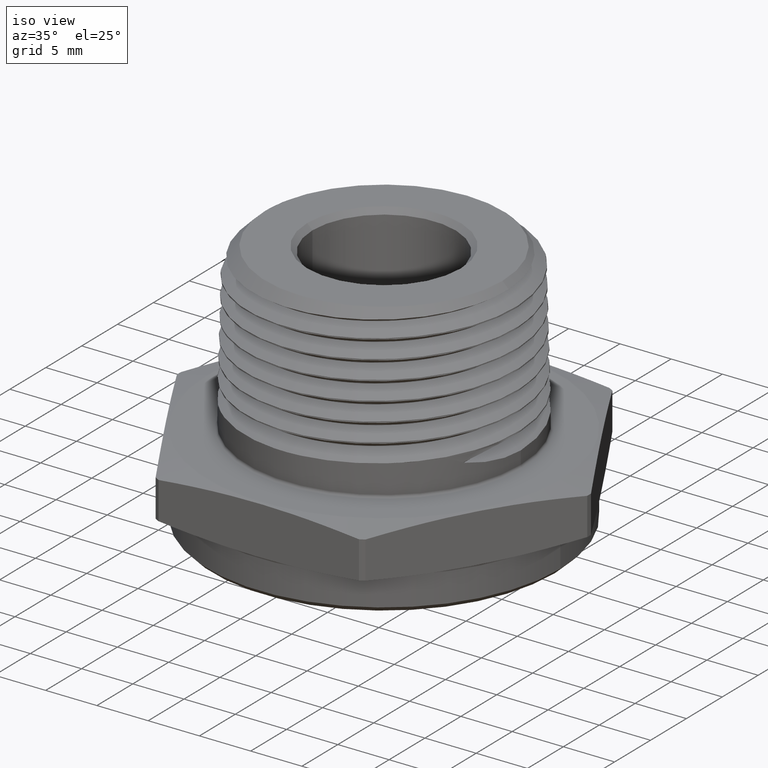
[diagram: clean part render]
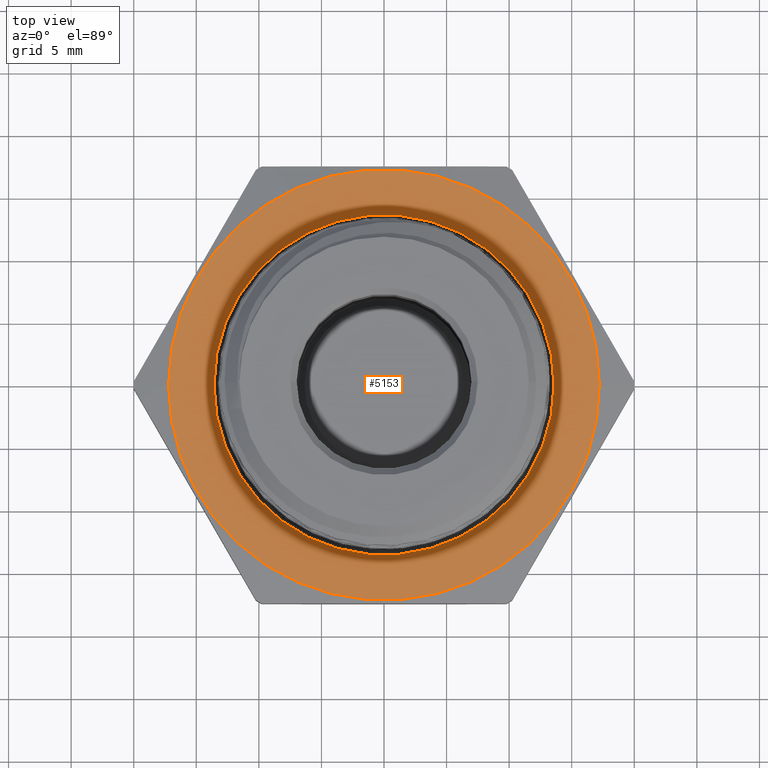
[diagram: tour spotlight — one face highlighted and labeled with its STEP entity id]
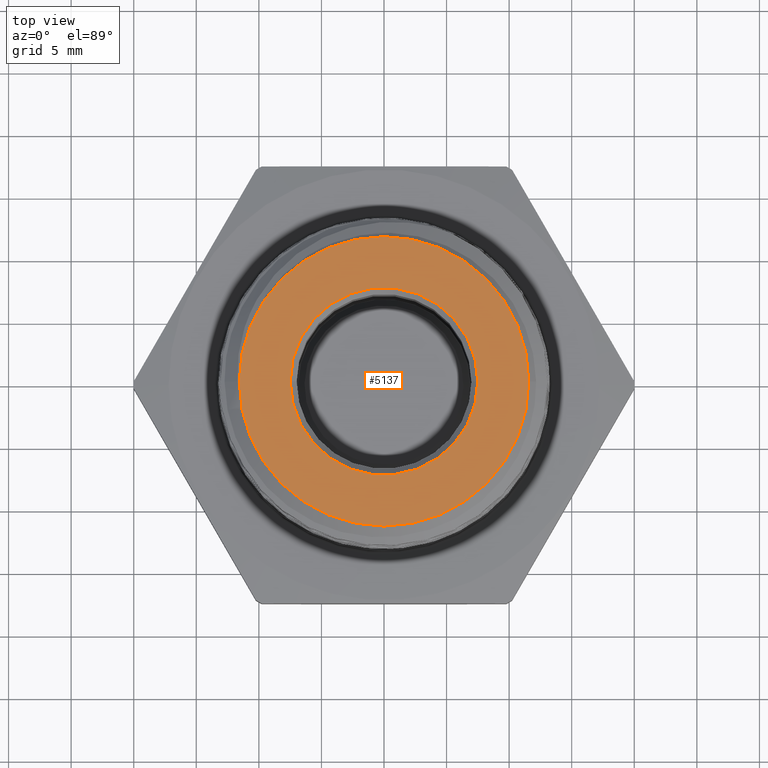
[diagram: tour spotlight — one face highlighted and labeled with its STEP entity id]
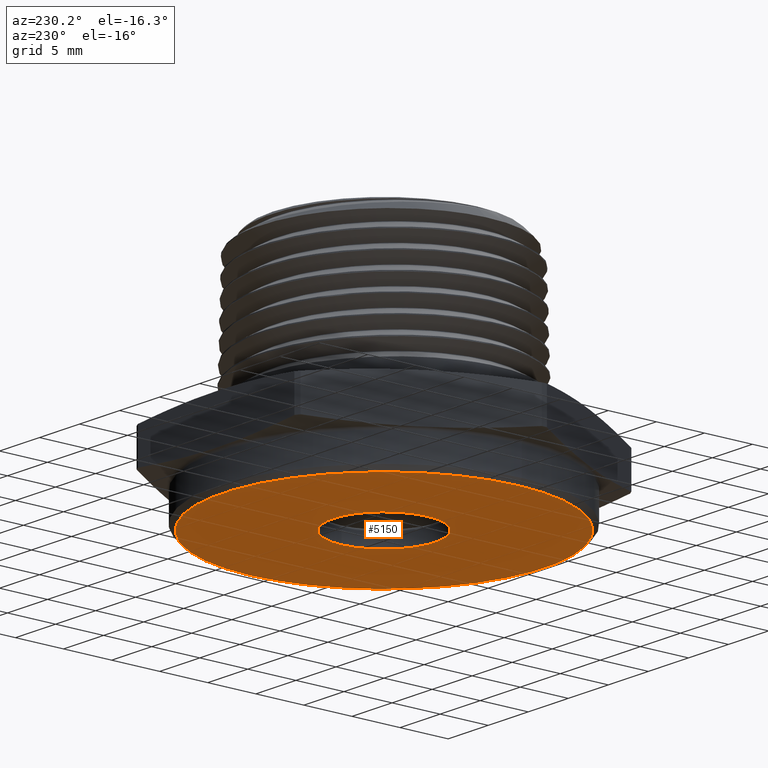
[diagram: tour spotlight — one face highlighted and labeled with its STEP entity id]
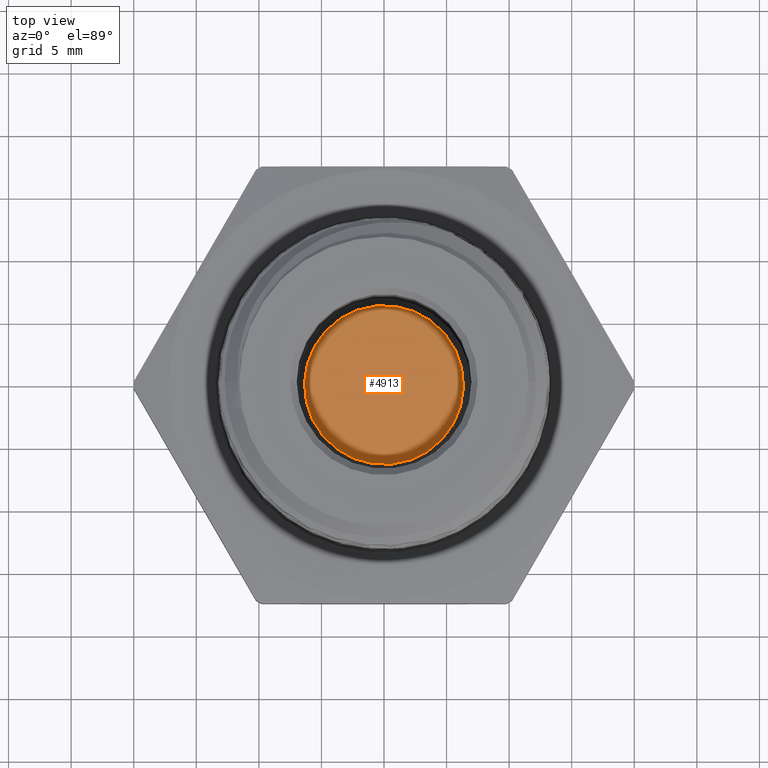
[diagram: tour spotlight — one face highlighted and labeled with its STEP entity id]
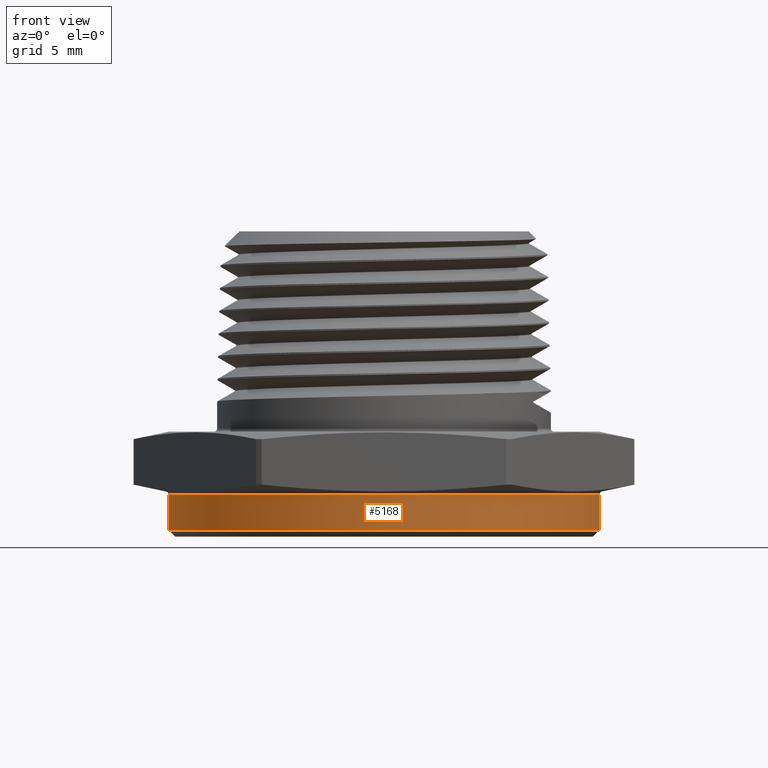
[diagram: tour spotlight — one face highlighted and labeled with its STEP entity id]
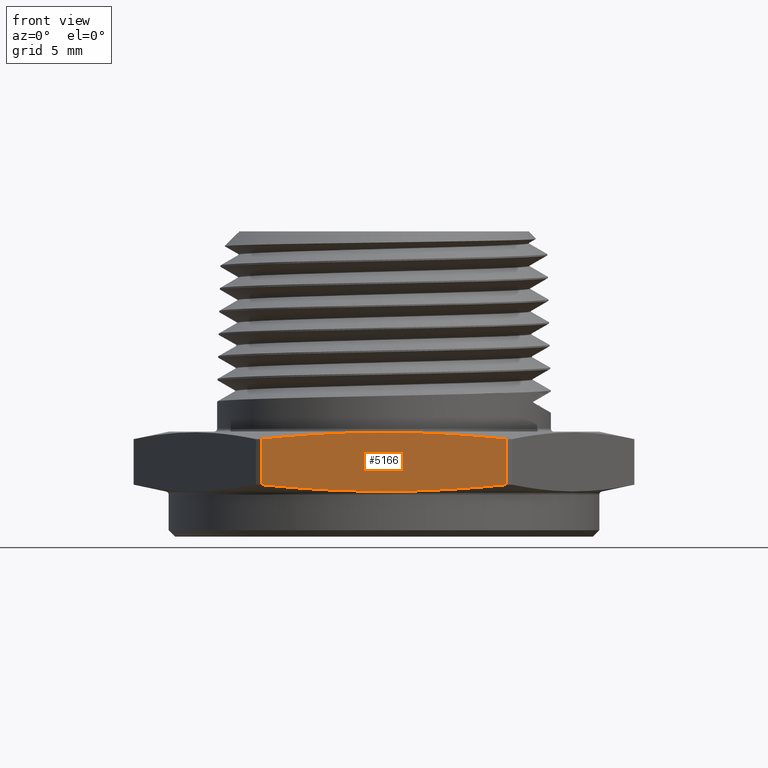
[diagram: tour spotlight — one face highlighted and labeled with its STEP entity id]
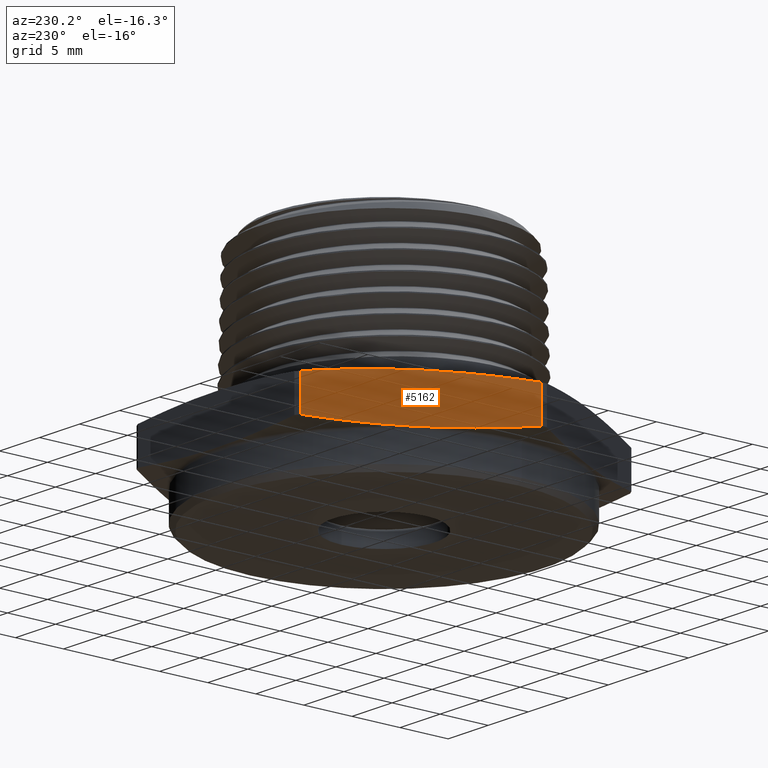
[diagram: tour spotlight — one face highlighted and labeled with its STEP entity id]
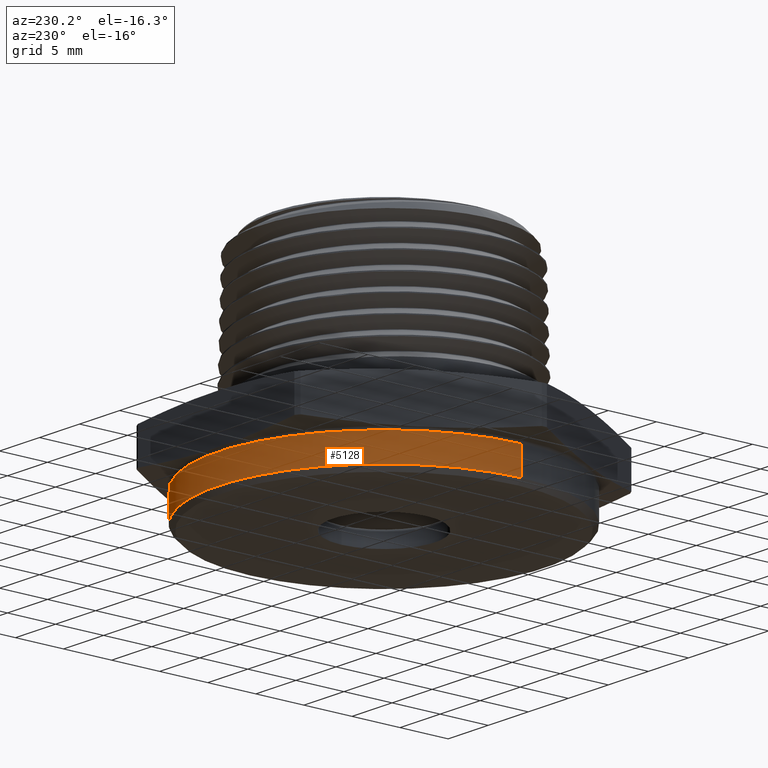
[diagram: tour spotlight — one face highlighted and labeled with its STEP entity id]
A machine part: a face-by-face anatomy tour. The part has 72 B-rep faces; the first image is the clean iso view, then the 8 largest visible faces are spotlighted one at a time (largest first), each with its STEP entity span.

Face 1 — top view, entity #5153. In plain terms, the highlighted planar face has unit normal (0, 0, 1).
Definition (entity closure, byte-faithful):
#207 = CARTESIAN_POINT ( 'NONE',  ( 2.384474441109529400E-017, 0.0000000000000000000, 0.1899999999999999200 ) ) ;
#208 = DIRECTION ( 'NONE',  ( -1.254986547952384500E-016, -0.0000000000000000000, -1.000000000000000000 ) ) ;
#209 = DIRECTION ( 'NONE',  ( -1.000000000000000000, 0.0000000000000000000, 1.008061990282016000E-016 ) ) ;
#212 = CARTESIAN_POINT ( 'NONE',  ( 0.0000000000000000000, 0.0000000000000000000, 0.1899999999999999700 ) ) ;
#213 = DIRECTION ( 'NONE',  ( 0.0000000000000000000, -0.0000000000000000000, -1.000000000000000000 ) ) ;
#214 = DIRECTION ( 'NONE',  ( 1.000000000000000000, 0.0000000000000000000, 0.0000000000000000000 ) ) ;
#702 = CIRCLE ( 'NONE', #5214, 0.5350000000000000300 ) ;
#722 = CIRCLE ( 'NONE', #5226, 0.6774999999999999900 ) ;
#737 = CIRCLE ( 'NONE', #4591, 0.5350000000000000300 ) ;
#740 = CIRCLE ( 'NONE', #4590, 0.6774999999999999900 ) ;
#1155 = CARTESIAN_POINT ( 'NONE',  ( -0.6774999999999997700, 0.0000000000000000000, 0.1899999999999999700 ) ) ;
#1162 = CARTESIAN_POINT ( 'NONE',  ( 0.5350000000000000300, 0.0000000000000000000, 0.1900000000000000300 ) ) ;
#1163 = CARTESIAN_POINT ( 'NONE',  ( -0.5350000000000000300, 6.551860375438339900E-017, 0.1900000000000000300 ) ) ;
#1168 = CARTESIAN_POINT ( 'NONE',  ( 0.6775000000000001000, 8.296982064223318700E-017, 0.1899999999999998600 ) ) ;
#2960 = DIRECTION ( 'NONE',  ( -0.0000000000000000000, 0.0000000000000000000, 1.000000000000000000 ) ) ;
#2961 = CARTESIAN_POINT ( 'NONE',  ( -0.3969283100678672700, -0.6875000000000000000, 0.1899999999999999700 ) ) ;
#2963 = PLANE ( 'NONE',  #2999 ) ;
#2965 = DIRECTION ( 'NONE',  ( 1.000000000000000000, 0.0000000000000000000, 0.0000000000000000000 ) ) ;
#2999 = AXIS2_PLACEMENT_3D ( 'NONE', #2961, #2960, #2965 ) ;
#4273 = EDGE_CURVE ( 'NONE', #4798, #4799, #702, .T. ) ;
#4292 = EDGE_CURVE ( 'NONE', #4791, #4804, #722, .T. ) ;
#4310 = EDGE_CURVE ( 'NONE', #4804, #4791, #740, .T. ) ;
#4311 = EDGE_CURVE ( 'NONE', #4799, #4798, #737, .T. ) ;
#4510 = CARTESIAN_POINT ( 'NONE',  ( 0.0000000000000000000, 0.0000000000000000000, 0.1899999999999999700 ) ) ;
#4511 = DIRECTION ( 'NONE',  ( 0.0000000000000000000, -0.0000000000000000000, -1.000000000000000000 ) ) ;
#4512 = DIRECTION ( 'NONE',  ( 1.000000000000000000, 0.0000000000000000000, 0.0000000000000000000 ) ) ;
#4584 = CARTESIAN_POINT ( 'NONE',  ( 2.384474441109529400E-017, 0.0000000000000000000, 0.1899999999999999200 ) ) ;
#4585 = DIRECTION ( 'NONE',  ( -1.254986547952384500E-016, -0.0000000000000000000, -1.000000000000000000 ) ) ;
#4586 = DIRECTION ( 'NONE',  ( -1.000000000000000000, 0.0000000000000000000, 1.008061990282016000E-016 ) ) ;
#4590 = AXIS2_PLACEMENT_3D ( 'NONE', #207, #208, #209 ) ;
#4591 = AXIS2_PLACEMENT_3D ( 'NONE', #212, #213, #214 ) ;
#4707 = FACE_OUTER_BOUND ( 'NONE', #5078, .T. ) ;
#4709 = FACE_BOUND ( 'NONE', #5080, .T. ) ;
#4791 = VERTEX_POINT ( 'NONE', #1155 ) ;
#4798 = VERTEX_POINT ( 'NONE', #1162 ) ;
#4799 = VERTEX_POINT ( 'NONE', #1163 ) ;
#4804 = VERTEX_POINT ( 'NONE', #1168 ) ;
#5001 = ORIENTED_EDGE ( 'NONE', *, *, #4292, .F. ) ;
#5002 = ORIENTED_EDGE ( 'NONE', *, *, #4310, .F. ) ;
#5003 = ORIENTED_EDGE ( 'NONE', *, *, #4273, .T. ) ;
#5004 = ORIENTED_EDGE ( 'NONE', *, *, #4311, .T. ) ;
#5078 = EDGE_LOOP ( 'NONE', ( #5001, #5002 ) ) ;
#5080 = EDGE_LOOP ( 'NONE', ( #5003, #5004 ) ) ;
#5153 = ADVANCED_FACE ( 'NONE', ( #4707, #4709 ), #2963, .T. ) ;
#5214 = AXIS2_PLACEMENT_3D ( 'NONE', #4510, #4511, #4512 ) ;
#5226 = AXIS2_PLACEMENT_3D ( 'NONE', #4584, #4585, #4586 ) ;

Face 2 — top view, entity #5137. In plain terms, the highlighted planar face has unit normal (0, 0, 1).
Definition (entity closure, byte-faithful):
#24 = EDGE_CURVE ( 'NONE', #4789, #4790, #918, .T. ) ;
#918 = CIRCLE ( 'NONE', #5190, 0.2949999999999998200 ) ;
#1153 = CARTESIAN_POINT ( 'NONE',  ( -0.2949999999999998200, 3.612708057484689500E-017, 0.8199999999999999500 ) ) ;
#1154 = CARTESIAN_POINT ( 'NONE',  ( 0.2949999999999998200, 0.0000000000000000000, 0.8199999999999999500 ) ) ;
#1215 = CARTESIAN_POINT ( 'NONE',  ( -0.4553000000000001500, 0.0000000000000000000, 0.8199999999999999500 ) ) ;
#1216 = CARTESIAN_POINT ( 'NONE',  ( 0.4553000000000001500, 5.860879756886066600E-017, 0.8199999999999999500 ) ) ;
#2910 = DIRECTION ( 'NONE',  ( 0.0000000000000000000, 0.0000000000000000000, 1.000000000000000000 ) ) ;
#2911 = CARTESIAN_POINT ( 'NONE',  ( 0.0000000000000000000, 0.0000000000000000000, 0.8199999999999999500 ) ) ;
#2913 = PLANE ( 'NONE',  #2983 ) ;
#2915 = DIRECTION ( 'NONE',  ( 1.000000000000000000, 0.0000000000000000000, -0.0000000000000000000 ) ) ;
#2983 = AXIS2_PLACEMENT_3D ( 'NONE', #2911, #2910, #2915 ) ;
#3014 = AXIS2_PLACEMENT_3D ( 'NONE', #3124, #3125, #3126 ) ;
#3016 = AXIS2_PLACEMENT_3D ( 'NONE', #3181, #3182, #3183 ) ;
#3019 = AXIS2_PLACEMENT_3D ( 'NONE', #3301, #3302, #3303 ) ;
#3124 = CARTESIAN_POINT ( 'NONE',  ( 0.0000000000000000000, 0.0000000000000000000, 0.8199999999999999500 ) ) ;
#3125 = DIRECTION ( 'NONE',  ( -0.0000000000000000000, -0.0000000000000000000, -1.000000000000000000 ) ) ;
#3126 = DIRECTION ( 'NONE',  ( -1.000000000000000000, 0.0000000000000000000, 0.0000000000000000000 ) ) ;
#3181 = CARTESIAN_POINT ( 'NONE',  ( 0.0000000000000000000, 0.0000000000000000000, 0.8199999999999999500 ) ) ;
#3182 = DIRECTION ( 'NONE',  ( -0.0000000000000000000, -0.0000000000000000000, -1.000000000000000000 ) ) ;
#3183 = DIRECTION ( 'NONE',  ( -1.000000000000000000, 0.0000000000000000000, 0.0000000000000000000 ) ) ;
#3301 = CARTESIAN_POINT ( 'NONE',  ( 4.898587196589410500E-018, 0.0000000000000000000, 0.8199999999999999500 ) ) ;
#3302 = DIRECTION ( 'NONE',  ( -0.0000000000000000000, -0.0000000000000000000, 1.000000000000000000 ) ) ;
#3303 = DIRECTION ( 'NONE',  ( 1.000000000000000000, 0.0000000000000000000, 0.0000000000000000000 ) ) ;
#4387 = DIRECTION ( 'NONE',  ( -0.0000000000000000000, -0.0000000000000000000, 1.000000000000000000 ) ) ;
#4388 = CARTESIAN_POINT ( 'NONE',  ( 4.898587196589410500E-018, 0.0000000000000000000, 0.8199999999999999500 ) ) ;
#4390 = DIRECTION ( 'NONE',  ( 1.000000000000000000, 0.0000000000000000000, 0.0000000000000000000 ) ) ;
#4670 = FACE_BOUND ( 'NONE', #5075, .T. ) ;
#4675 = FACE_OUTER_BOUND ( 'NONE', #5072, .T. ) ;
#4705 = CIRCLE ( 'NONE', #3016, 0.4553000000000001500 ) ;
#4735 = CIRCLE ( 'NONE', #3014, 0.4553000000000001500 ) ;
#4743 = CIRCLE ( 'NONE', #3019, 0.2949999999999998200 ) ;
#4789 = VERTEX_POINT ( 'NONE', #1153 ) ;
#4790 = VERTEX_POINT ( 'NONE', #1154 ) ;
#4851 = VERTEX_POINT ( 'NONE', #1215 ) ;
#4852 = VERTEX_POINT ( 'NONE', #1216 ) ;
#5072 = EDGE_LOOP ( 'NONE', ( #5571, #5572 ) ) ;
#5075 = EDGE_LOOP ( 'NONE', ( #5573, #5574 ) ) ;
#5137 = ADVANCED_FACE ( 'NONE', ( #4675, #4670 ), #2913, .T. ) ;
#5171 = EDGE_CURVE ( 'NONE', #4851, #4852, #4735, .T. ) ;
#5176 = EDGE_CURVE ( 'NONE', #4852, #4851, #4705, .T. ) ;
#5185 = EDGE_CURVE ( 'NONE', #4790, #4789, #4743, .T. ) ;
#5190 = AXIS2_PLACEMENT_3D ( 'NONE', #4388, #4387, #4390 ) ;
#5571 = ORIENTED_EDGE ( 'NONE', *, *, #5171, .F. ) ;
#5572 = ORIENTED_EDGE ( 'NONE', *, *, #5176, .F. ) ;
#5573 = ORIENTED_EDGE ( 'NONE', *, *, #5185, .F. ) ;
#5574 = ORIENTED_EDGE ( 'NONE', *, *, #24, .F. ) ;

Face 3 — auxiliary view, entity #5150. In plain terms, the highlighted planar face has unit normal (0, 0, -1).
Definition (entity closure, byte-faithful):
#20 = EDGE_CURVE ( 'NONE', #4788, #4787, #910, .T. ) ;
#25 = EDGE_CURVE ( 'NONE', #4776, #4792, #917, .T. ) ;
#910 = CIRCLE ( 'NONE', #5188, 0.2090000000000001000 ) ;
#917 = CIRCLE ( 'NONE', #5191, 0.6574999999999997500 ) ;
#1144 = CARTESIAN_POINT ( 'NONE',  ( -0.6574999999999997500, 8.174517384308581200E-017, -0.1400000000000000100 ) ) ;
#1151 = CARTESIAN_POINT ( 'NONE',  ( 0.2090000000000001000, 0.0000000000000000000, -0.1400000000000000100 ) ) ;
#1152 = CARTESIAN_POINT ( 'NONE',  ( -0.2090000000000001000, 2.559511810217969600E-017, -0.1400000000000000100 ) ) ;
#1156 = CARTESIAN_POINT ( 'NONE',  ( 0.6574999999999997500, 0.0000000000000000000, -0.1400000000000000100 ) ) ;
#2950 = DIRECTION ( 'NONE',  ( 0.0000000000000000000, 0.0000000000000000000, -1.000000000000000000 ) ) ;
#2951 = CARTESIAN_POINT ( 'NONE',  ( 0.0000000000000000000, 0.0000000000000000000, -0.1400000000000000100 ) ) ;
#2953 = PLANE ( 'NONE',  #2996 ) ;
#2955 = DIRECTION ( 'NONE',  ( -1.000000000000000000, 0.0000000000000000000, -0.0000000000000000000 ) ) ;
#2996 = AXIS2_PLACEMENT_3D ( 'NONE', #2951, #2950, #2955 ) ;
#3017 = AXIS2_PLACEMENT_3D ( 'NONE', #3294, #3295, #3296 ) ;
#3018 = AXIS2_PLACEMENT_3D ( 'NONE', #3298, #3299, #3300 ) ;
#3294 = CARTESIAN_POINT ( 'NONE',  ( 0.0000000000000000000, 0.0000000000000000000, -0.1400000000000000100 ) ) ;
#3295 = DIRECTION ( 'NONE',  ( 0.0000000000000000000, 0.0000000000000000000, -1.000000000000000000 ) ) ;
#3296 = DIRECTION ( 'NONE',  ( -1.000000000000000000, 0.0000000000000000000, 0.0000000000000000000 ) ) ;
#3298 = CARTESIAN_POINT ( 'NONE',  ( 4.898587196589410500E-018, 0.0000000000000000000, -0.1400000000000000100 ) ) ;
#3299 = DIRECTION ( 'NONE',  ( -0.0000000000000000000, -0.0000000000000000000, 1.000000000000000000 ) ) ;
#3300 = DIRECTION ( 'NONE',  ( 1.000000000000000000, 0.0000000000000000000, 0.0000000000000000000 ) ) ;
#4385 = DIRECTION ( 'NONE',  ( 0.0000000000000000000, 0.0000000000000000000, -1.000000000000000000 ) ) ;
#4386 = DIRECTION ( 'NONE',  ( -1.000000000000000000, 0.0000000000000000000, 0.0000000000000000000 ) ) ;
#4396 = DIRECTION ( 'NONE',  ( 1.000000000000000000, 0.0000000000000000000, 0.0000000000000000000 ) ) ;
#4399 = CARTESIAN_POINT ( 'NONE',  ( 0.0000000000000000000, 0.0000000000000000000, -0.1400000000000000100 ) ) ;
#4408 = CARTESIAN_POINT ( 'NONE',  ( 4.898587196589410500E-018, 0.0000000000000000000, -0.1400000000000000100 ) ) ;
#4435 = DIRECTION ( 'NONE',  ( -0.0000000000000000000, -0.0000000000000000000, 1.000000000000000000 ) ) ;
#4680 = FACE_BOUND ( 'NONE', #5073, .T. ) ;
#4701 = FACE_OUTER_BOUND ( 'NONE', #5071, .T. ) ;
#4738 = CIRCLE ( 'NONE', #3018, 0.2090000000000001000 ) ;
#4742 = CIRCLE ( 'NONE', #3017, 0.6574999999999997500 ) ;
#4776 = VERTEX_POINT ( 'NONE', #1144 ) ;
#4787 = VERTEX_POINT ( 'NONE', #1151 ) ;
#4788 = VERTEX_POINT ( 'NONE', #1152 ) ;
#4792 = VERTEX_POINT ( 'NONE', #1156 ) ;
#5071 = EDGE_LOOP ( 'NONE', ( #5567, #5568 ) ) ;
#5073 = EDGE_LOOP ( 'NONE', ( #5569, #5570 ) ) ;
#5150 = ADVANCED_FACE ( 'NONE', ( #4701, #4680 ), #2953, .T. ) ;
#5183 = EDGE_CURVE ( 'NONE', #4792, #4776, #4742, .T. ) ;
#5184 = EDGE_CURVE ( 'NONE', #4787, #4788, #4738, .T. ) ;
#5188 = AXIS2_PLACEMENT_3D ( 'NONE', #4408, #4435, #4396 ) ;
#5191 = AXIS2_PLACEMENT_3D ( 'NONE', #4399, #4385, #4386 ) ;
#5567 = ORIENTED_EDGE ( 'NONE', *, *, #5183, .T. ) ;
#5568 = ORIENTED_EDGE ( 'NONE', *, *, #25, .T. ) ;
#5569 = ORIENTED_EDGE ( 'NONE', *, *, #5184, .T. ) ;
#5570 = ORIENTED_EDGE ( 'NONE', *, *, #20, .T. ) ;

Face 4 — top view, entity #4913. In plain terms, the highlighted planar face has unit normal (0, 0, 1).
Definition (entity closure, byte-faithful):
#16 = EDGE_CURVE ( 'NONE', #4873, #4877, #903, .T. ) ;
#325 = CARTESIAN_POINT ( 'NONE',  ( 0.1166800539378871600, -0.1164497935006366300, 0.2362204724409449100 ) ) ;
#326 = DIRECTION ( 'NONE',  ( -0.0000000000000000000, 0.0000000000000000000, 1.000000000000000000 ) ) ;
#327 = DIRECTION ( 'NONE',  ( 1.000000000000000000, 0.0000000000000000000, 0.0000000000000000000 ) ) ;
#784 = CIRCLE ( 'NONE', #4603, 0.2500000000000002800 ) ;
#822 = FACE_OUTER_BOUND ( 'NONE', #5623, .T. ) ;
#895 = ORIENTED_EDGE ( 'NONE', *, *, #4348, .T. ) ;
#896 = ORIENTED_EDGE ( 'NONE', *, *, #16, .T. ) ;
#903 = CIRCLE ( 'NONE', #5187, 0.2500000000000002800 ) ;
#1237 = CARTESIAN_POINT ( 'NONE',  ( 0.3666800539378874400, -0.1164497935006366000, 0.2362204724409449100 ) ) ;
#1241 = CARTESIAN_POINT ( 'NONE',  ( -0.1333199460621131100, -0.1164497935006366300, 0.2362204724409449100 ) ) ;
#2845 = CARTESIAN_POINT ( 'NONE',  ( 0.0000000000000000000, 0.0000000000000000000, 0.2362204724409449100 ) ) ;
#2847 = PLANE ( 'NONE',  #4625 ) ;
#2849 = DIRECTION ( 'NONE',  ( -0.0000000000000000000, 0.0000000000000000000, 1.000000000000000000 ) ) ;
#2850 = DIRECTION ( 'NONE',  ( 1.000000000000000000, 0.0000000000000000000, 0.0000000000000000000 ) ) ;
#4348 = EDGE_CURVE ( 'NONE', #4877, #4873, #784, .T. ) ;
#4378 = CARTESIAN_POINT ( 'NONE',  ( 0.1166800539378871600, -0.1164497935006366300, 0.2362204724409449100 ) ) ;
#4379 = DIRECTION ( 'NONE',  ( -0.0000000000000000000, 0.0000000000000000000, 1.000000000000000000 ) ) ;
#4380 = DIRECTION ( 'NONE',  ( 1.000000000000000000, 0.0000000000000000000, 0.0000000000000000000 ) ) ;
#4603 = AXIS2_PLACEMENT_3D ( 'NONE', #325, #326, #327 ) ;
#4625 = AXIS2_PLACEMENT_3D ( 'NONE', #2845, #2849, #2850 ) ;
#4873 = VERTEX_POINT ( 'NONE', #1237 ) ;
#4877 = VERTEX_POINT ( 'NONE', #1241 ) ;
#4913 = ADVANCED_FACE ( 'NONE', ( #822 ), #2847, .T. ) ;
#5187 = AXIS2_PLACEMENT_3D ( 'NONE', #4378, #4379, #4380 ) ;
#5623 = EDGE_LOOP ( 'NONE', ( #895, #896 ) ) ;

Face 5 — front view, entity #5168. In plain terms, the highlighted cylindrical surface (partial cylindrical patch) has radius 17.2085 mm, axis along (0, 0, 1).
Definition (entity closure, byte-faithful):
#340 = CARTESIAN_POINT ( 'NONE',  ( 0.0000000000000000000, 0.0000000000000000000, -0.1199999999999995400 ) ) ;
#341 = DIRECTION ( 'NONE',  ( 0.0000000000000000000, 0.0000000000000000000, 1.000000000000000000 ) ) ;
#342 = DIRECTION ( 'NONE',  ( -1.000000000000000000, 0.0000000000000000000, 0.0000000000000000000 ) ) ;
#707 = CIRCLE ( 'NONE', #5216, 0.6774999999999999900 ) ;
#710 = LINE ( 'NONE', #4528, #714 ) ;
#714 = VECTOR ( 'NONE', #4523, 39.37007874015748100 ) ;
#715 = LINE ( 'NONE', #4519, #717 ) ;
#717 = VECTOR ( 'NONE', #4527, 39.37007874015748100 ) ;
#783 = CIRCLE ( 'NONE', #4605, 0.6774999999999999900 ) ;
#1158 = CARTESIAN_POINT ( 'NONE',  ( 0.6774999999999999900, 0.0000000000000000000, -0.1199999999999995400 ) ) ;
#1159 = CARTESIAN_POINT ( 'NONE',  ( -0.6774999999999999900, 8.296982064223316200E-017, -0.1199999999999995400 ) ) ;
#1161 = CARTESIAN_POINT ( 'NONE',  ( 0.6774999999999999900, 0.0000000000000000000, -0.008097840331950292200 ) ) ;
#1164 = CARTESIAN_POINT ( 'NONE',  ( -0.6774999999999999900, 8.296982064223316200E-017, -0.008097840331950207200 ) ) ;
#3015 = AXIS2_PLACEMENT_3D ( 'NONE', #3067, #3063, #3064 ) ;
#3063 = DIRECTION ( 'NONE',  ( -0.0000000000000000000, -0.0000000000000000000, 1.000000000000000000 ) ) ;
#3064 = DIRECTION ( 'NONE',  ( 1.000000000000000000, 0.0000000000000000000, 0.0000000000000000000 ) ) ;
#3067 = CARTESIAN_POINT ( 'NONE',  ( 0.0000000000000000000, 0.0000000000000000000, -0.1400000000000000100 ) ) ;
#4275 = EDGE_CURVE ( 'NONE', #4797, #4800, #707, .T. ) ;
#4279 = EDGE_CURVE ( 'NONE', #4795, #4800, #710, .T. ) ;
#4281 = EDGE_CURVE ( 'NONE', #4794, #4797, #715, .T. ) ;
#4351 = EDGE_CURVE ( 'NONE', #4795, #4794, #783, .T. ) ;
#4516 = CARTESIAN_POINT ( 'NONE',  ( 0.0000000000000000000, 0.0000000000000000000, -0.008097840331950248800 ) ) ;
#4517 = DIRECTION ( 'NONE',  ( -6.274932739761922300E-017, -0.0000000000000000000, -1.000000000000000000 ) ) ;
#4518 = DIRECTION ( 'NONE',  ( -1.000000000000000000, 0.0000000000000000000, 6.300387439262599300E-017 ) ) ;
#4519 = CARTESIAN_POINT ( 'NONE',  ( 0.6774999999999999900, 0.0000000000000000000, -0.1400000000000000100 ) ) ;
#4523 = DIRECTION ( 'NONE',  ( -0.0000000000000000000, -0.0000000000000000000, 1.000000000000000000 ) ) ;
#4527 = DIRECTION ( 'NONE',  ( -0.0000000000000000000, -0.0000000000000000000, 1.000000000000000000 ) ) ;
#4528 = CARTESIAN_POINT ( 'NONE',  ( -0.6774999999999999900, 8.296982064223316200E-017, -0.1400000000000000100 ) ) ;
#4605 = AXIS2_PLACEMENT_3D ( 'NONE', #340, #341, #342 ) ;
#4731 = FACE_OUTER_BOUND ( 'NONE', #5066, .T. ) ;
#4734 = CYLINDRICAL_SURFACE ( 'NONE', #3015, 0.6774999999999999900 ) ;
#4794 = VERTEX_POINT ( 'NONE', #1158 ) ;
#4795 = VERTEX_POINT ( 'NONE', #1159 ) ;
#4797 = VERTEX_POINT ( 'NONE', #1161 ) ;
#4800 = VERTEX_POINT ( 'NONE', #1164 ) ;
#5066 = EDGE_LOOP ( 'NONE', ( #5651, #5652, #5653, #5089 ) ) ;
#5089 = ORIENTED_EDGE ( 'NONE', *, *, #4275, .T. ) ;
#5168 = ADVANCED_FACE ( 'NONE', ( #4731 ), #4734, .T. ) ;
#5216 = AXIS2_PLACEMENT_3D ( 'NONE', #4516, #4517, #4518 ) ;
#5651 = ORIENTED_EDGE ( 'NONE', *, *, #4279, .F. ) ;
#5652 = ORIENTED_EDGE ( 'NONE', *, *, #4351, .T. ) ;
#5653 = ORIENTED_EDGE ( 'NONE', *, *, #4281, .T. ) ;

Face 6 — front view, entity #5166. In plain terms, the highlighted planar face has unit normal (-0, 1, 0).
Definition (entity closure, byte-faithful):
#210 = CARTESIAN_POINT ( 'NONE',  ( -0.3847879986326295200, -0.6875000000000000000, 4.829037620974707000E-017 ) ) ;
#211 = DIRECTION ( 'NONE',  ( -1.254986547952384500E-016, -0.0000000000000000000, -1.000000000000000000 ) ) ;
#230 = DIRECTION ( 'NONE',  ( 1.254986547952384500E-016, 0.0000000000000000000, 1.000000000000000000 ) ) ;
#233 = CARTESIAN_POINT ( 'NONE',  ( 0.3847879986326298000, -0.6875000000000000000, -4.829037620974707000E-017 ) ) ;
#255 = CARTESIAN_POINT ( 'NONE',  ( 0.3207939255436971200, -0.6874999999999998900, 0.1731863486800747100 ) ) ;
#257 = CARTESIAN_POINT ( 'NONE',  ( 0.2567715100175838000, -0.6875000000000000000, 0.1785668769994930300 ) ) ;
#265 = CARTESIAN_POINT ( 'NONE',  ( 0.3847879986326296900, -0.6874999999999998900, 0.1665429762664239500 ) ) ;
#267 = CARTESIAN_POINT ( 'NONE',  ( 0.1286501301706381400, -0.6874999999999998900, 0.1859171756744034700 ) ) ;
#268 = CARTESIAN_POINT ( 'NONE',  ( 0.06455070300540921600, -0.6874999999999998900, 0.1878663232334452900 ) ) ;
#269 = CARTESIAN_POINT ( 'NONE',  ( -0.06373527915191769300, -0.6874999999999998900, 0.1878824941396054200 ) ) ;
#270 = CARTESIAN_POINT ( 'NONE',  ( -0.1279218474649859400, -0.6875000000000000000, 0.1859489239488872100 ) ) ;
#271 = CARTESIAN_POINT ( 'NONE',  ( -0.2563731341799861400, -0.6875000000000000000, 0.1785996772984828900 ) ) ;
#272 = CARTESIAN_POINT ( 'NONE',  ( -0.3206987692007933200, -0.6875000000000001100, 0.1731962270796346400 ) ) ;
#273 = CARTESIAN_POINT ( 'NONE',  ( -0.3847879986326295200, -0.6875000000000000000, 0.1665429762664240300 ) ) ;
#283 = CARTESIAN_POINT ( 'NONE',  ( -0.3206987692007930400, -0.6875000000000001100, 0.01680377292036532700 ) ) ;
#285 = CARTESIAN_POINT ( 'NONE',  ( -0.2563731341799860800, -0.6875000000000001100, 0.01140032270151696000 ) ) ;
#293 = CARTESIAN_POINT ( 'NONE',  ( -0.3847879986326295200, -0.6875000000000000000, 0.02345702373357588100 ) ) ;
#294 = CARTESIAN_POINT ( 'NONE',  ( -0.1279218474649858100, -0.6875000000000001100, 0.004051076051112646000 ) ) ;
#295 = CARTESIAN_POINT ( 'NONE',  ( -0.06373527915191754000, -0.6875000000000000000, 0.002117505860394467900 ) ) ;
#296 = CARTESIAN_POINT ( 'NONE',  ( 0.06455070300540931300, -0.6874999999999998900, 0.002133676766554501400 ) ) ;
#297 = CARTESIAN_POINT ( 'NONE',  ( 0.1286501301706384800, -0.6874999999999998900, 0.004082824325596340300 ) ) ;
#298 = CARTESIAN_POINT ( 'NONE',  ( 0.2567715100175841400, -0.6874999999999998900, 0.01143312300050682400 ) ) ;
#299 = CARTESIAN_POINT ( 'NONE',  ( 0.3207939255436973400, -0.6874999999999998900, 0.01681365131992504700 ) ) ;
#300 = CARTESIAN_POINT ( 'NONE',  ( 0.3847879986326296900, -0.6874999999999998900, 0.02345702373357573900 ) ) ;
#742 = LINE ( 'NONE', #210, #744 ) ;
#744 = VECTOR ( 'NONE', #211, 39.37007874015748100 ) ;
#751 = LINE ( 'NONE', #233, #755 ) ;
#755 = VECTOR ( 'NONE', #230, 39.37007874015748100 ) ;
#1185 = CARTESIAN_POINT ( 'NONE',  ( -0.3847879986326295200, -0.6875000000000000000, 0.1665429762664240300 ) ) ;
#1224 = CARTESIAN_POINT ( 'NONE',  ( -0.3847879986326295200, -0.6875000000000000000, 0.02345702373357588100 ) ) ;
#1232 = CARTESIAN_POINT ( 'NONE',  ( 0.3847879986326296900, -0.6874999999999998900, 0.02345702373357573900 ) ) ;
#1238 = CARTESIAN_POINT ( 'NONE',  ( 0.3847879986326296900, -0.6874999999999998900, 0.1665429762664239500 ) ) ;
#3011 = AXIS2_PLACEMENT_3D ( 'NONE', #3056, #3061, #3062 ) ;
#3055 = PLANE ( 'NONE',  #3011 ) ;
#3056 = CARTESIAN_POINT ( 'NONE',  ( -0.3969283100678673300, -0.6875000000000000000, 0.1899999999999999700 ) ) ;
#3061 = DIRECTION ( 'NONE',  ( -1.720618008575129800E-016, 1.000000000000000000, 0.0000000000000000000 ) ) ;
#3062 = DIRECTION ( 'NONE',  ( -1.000000000000000000, -1.720618008575129800E-016, 0.0000000000000000000 ) ) ;
#3905 = B_SPLINE_CURVE_WITH_KNOTS ( 'NONE', 3,
 ( #293, #283, #285, #294, #295, #296, #297, #298, #299, #300 ),
 .UNSPECIFIED., .F., .F.,
 ( 4, 2, 2, 2, 4 ),
 ( 0.01704166410926147300, 0.02194788321822907900, 0.02685410232719668400, 0.03176032143616429300, 0.03666654054513189500 ),
 .UNSPECIFIED. ) ;
#3910 = B_SPLINE_CURVE_WITH_KNOTS ( 'NONE', 3,
 ( #265, #255, #257, #267, #268, #269, #270, #271, #272, #273 ),
 .UNSPECIFIED., .F., .F.,
 ( 4, 2, 2, 2, 4 ),
 ( 0.03842031797664890300, 0.04332173747623432900, 0.04822315697581974800, 0.05312457647540516600, 0.05802599597499059200 ),
 .UNSPECIFIED. ) ;
#4313 = EDGE_CURVE ( 'NONE', #4821, #4860, #742, .T. ) ;
#4320 = EDGE_CURVE ( 'NONE', #4868, #4874, #751, .T. ) ;
#4330 = EDGE_CURVE ( 'NONE', #4874, #4821, #3910, .T. ) ;
#4333 = EDGE_CURVE ( 'NONE', #4860, #4868, #3905, .T. ) ;
#4729 = FACE_OUTER_BOUND ( 'NONE', #5064, .T. ) ;
#4821 = VERTEX_POINT ( 'NONE', #1185 ) ;
#4860 = VERTEX_POINT ( 'NONE', #1224 ) ;
#4868 = VERTEX_POINT ( 'NONE', #1232 ) ;
#4874 = VERTEX_POINT ( 'NONE', #1238 ) ;
#5064 = EDGE_LOOP ( 'NONE', ( #5643, #5644, #5645, #5646 ) ) ;
#5166 = ADVANCED_FACE ( 'NONE', ( #4729 ), #3055, .F. ) ;
#5643 = ORIENTED_EDGE ( 'NONE', *, *, #4333, .T. ) ;
#5644 = ORIENTED_EDGE ( 'NONE', *, *, #4320, .T. ) ;
#5645 = ORIENTED_EDGE ( 'NONE', *, *, #4330, .T. ) ;
#5646 = ORIENTED_EDGE ( 'NONE', *, *, #4313, .T. ) ;

Face 7 — auxiliary view, entity #5162. In plain terms, the highlighted planar face has unit normal (0.866, -0.5, 0).
Definition (entity closure, byte-faithful):
#129 = CARTESIAN_POINT ( 'NONE',  ( -0.7236551313126781100, 0.1215925454085139400, 0.1785865953667216700 ) ) ;
#130 = CARTESIAN_POINT ( 'NONE',  ( -0.7557207978653973600, 0.06605318176064242700, 0.1732005979591585100 ) ) ;
#134 = CARTESIAN_POINT ( 'NONE',  ( -0.7877864644181163900, 0.01051381811277086300, 0.1665429762664240900 ) ) ;
#135 = CARTESIAN_POINT ( 'NONE',  ( -0.6595237982072397200, 0.2326712727042569700, 0.1859337814919883000 ) ) ;
#136 = CARTESIAN_POINT ( 'NONE',  ( -0.5953924651018017700, 0.3437499999999997200, 0.1898150872746113500 ) ) ;
#137 = CARTESIAN_POINT ( 'NONE',  ( -0.5312611319963631600, 0.4548287272957429700, 0.1859337814919883300 ) ) ;
#138 = CARTESIAN_POINT ( 'NONE',  ( -0.4671297988909251000, 0.5659074545914859500, 0.1785865953667216700 ) ) ;
#139 = CARTESIAN_POINT ( 'NONE',  ( -0.4350641323382059000, 0.6214468182393573200, 0.1732005979591585100 ) ) ;
#140 = CARTESIAN_POINT ( 'NONE',  ( -0.4029984657854867600, 0.6769861818872290300, 0.1665429762664240300 ) ) ;
#225 = CARTESIAN_POINT ( 'NONE',  ( -0.7877864644181163900, 0.01051381811277086300, 2.414518810487353500E-017 ) ) ;
#226 = DIRECTION ( 'NONE',  ( 1.254986547952384500E-016, 0.0000000000000000000, 1.000000000000000000 ) ) ;
#251 = CARTESIAN_POINT ( 'NONE',  ( -0.4029984657854867600, 0.6769861818872290300, -2.414518810487353500E-017 ) ) ;
#252 = DIRECTION ( 'NONE',  ( -1.254986547952384500E-016, -0.0000000000000000000, -1.000000000000000000 ) ) ;
#746 = LINE ( 'NONE', #225, #749 ) ;
#749 = VECTOR ( 'NONE', #226, 39.37007874015748100 ) ;
#764 = LINE ( 'NONE', #251, #767 ) ;
#767 = VECTOR ( 'NONE', #252, 39.37007874015748100 ) ;
#1165 = CARTESIAN_POINT ( 'NONE',  ( -0.4029984657854867600, 0.6769861818872290300, 0.02345702373357588100 ) ) ;
#1170 = CARTESIAN_POINT ( 'NONE',  ( -0.7877864644181163900, 0.01051381811277086300, 0.02345702373357588100 ) ) ;
#1180 = CARTESIAN_POINT ( 'NONE',  ( -0.4029984657854867600, 0.6769861818872290300, 0.1665429762664240300 ) ) ;
#1181 = CARTESIAN_POINT ( 'NONE',  ( -0.7877864644181163900, 0.01051381811277086300, 0.1665429762664240900 ) ) ;
#3007 = AXIS2_PLACEMENT_3D ( 'NONE', #3041, #3045, #3046 ) ;
#3041 = CARTESIAN_POINT ( 'NONE',  ( -0.3969283100678678800, 0.6874999999999998900, 0.1899999999999999700 ) ) ;
#3043 = PLANE ( 'NONE',  #3007 ) ;
#3045 = DIRECTION ( 'NONE',  ( 0.8660254037844387100, -0.4999999999999999400, 0.0000000000000000000 ) ) ;
#3046 = DIRECTION ( 'NONE',  ( 0.4999999999999998900, 0.8660254037844386000, 0.0000000000000000000 ) ) ;
#3391 = B_SPLINE_CURVE_WITH_KNOTS ( 'NONE', 3,
 ( #4545, #4540, #4541, #4546, #4547, #4548, #4549, #4550, #4551 ),
 .UNSPECIFIED., .F., .F.,
 ( 4, 2, 1, 2, 4 ),
 ( 1.926409279437244500E-006, 0.004888733991913832500, 0.009775541574548228900, 0.01466234915718262400, 0.01954915673981702200 ),
 .UNSPECIFIED. ) ;
#3917 = B_SPLINE_CURVE_WITH_KNOTS ( 'NONE', 3,
 ( #134, #130, #129, #135, #136, #137, #138, #139, #140 ),
 .UNSPECIFIED., .F., .F.,
 ( 4, 2, 1, 2, 4 ),
 ( 1.926409279434427700E-006, 0.004888733991913831600, 0.009775541574548228900, 0.01466234915718262100, 0.01954915673981701500 ),
 .UNSPECIFIED. ) ;
#4285 = EDGE_CURVE ( 'NONE', #4801, #4806, #3391, .T. ) ;
#4299 = EDGE_CURVE ( 'NONE', #4817, #4816, #3917, .T. ) ;
#4316 = EDGE_CURVE ( 'NONE', #4806, #4817, #746, .T. ) ;
#4327 = EDGE_CURVE ( 'NONE', #4816, #4801, #764, .T. ) ;
#4540 = CARTESIAN_POINT ( 'NONE',  ( -0.4350641323382060700, 0.6214468182393575500, 0.01679940204084138400 ) ) ;
#4541 = CARTESIAN_POINT ( 'NONE',  ( -0.4671297988909251000, 0.5659074545914861700, 0.01141340463327823400 ) ) ;
#4545 = CARTESIAN_POINT ( 'NONE',  ( -0.4029984657854867600, 0.6769861818872290300, 0.02345702373357588100 ) ) ;
#4546 = CARTESIAN_POINT ( 'NONE',  ( -0.5312611319963631600, 0.4548287272957429200, 0.004066218508011671700 ) ) ;
#4547 = CARTESIAN_POINT ( 'NONE',  ( -0.5953924651018016600, 0.3437499999999998300, 0.0001849127253886720300 ) ) ;
#4548 = CARTESIAN_POINT ( 'NONE',  ( -0.6595237982072397200, 0.2326712727042568600, 0.004066218508011693400 ) ) ;
#4549 = CARTESIAN_POINT ( 'NONE',  ( -0.7236551313126781100, 0.1215925454085138700, 0.01141340463327827700 ) ) ;
#4550 = CARTESIAN_POINT ( 'NONE',  ( -0.7557207978653974800, 0.06605318176064245400, 0.01679940204084143900 ) ) ;
#4551 = CARTESIAN_POINT ( 'NONE',  ( -0.7877864644181163900, 0.01051381811277086300, 0.02345702373357588100 ) ) ;
#4725 = FACE_OUTER_BOUND ( 'NONE', #5063, .T. ) ;
#4801 = VERTEX_POINT ( 'NONE', #1165 ) ;
#4806 = VERTEX_POINT ( 'NONE', #1170 ) ;
#4816 = VERTEX_POINT ( 'NONE', #1180 ) ;
#4817 = VERTEX_POINT ( 'NONE', #1181 ) ;
#5063 = EDGE_LOOP ( 'NONE', ( #5681, #5654, #5655, #5656 ) ) ;
#5162 = ADVANCED_FACE ( 'NONE', ( #4725 ), #3043, .F. ) ;
#5654 = ORIENTED_EDGE ( 'NONE', *, *, #4316, .T. ) ;
#5655 = ORIENTED_EDGE ( 'NONE', *, *, #4299, .T. ) ;
#5656 = ORIENTED_EDGE ( 'NONE', *, *, #4327, .T. ) ;
#5681 = ORIENTED_EDGE ( 'NONE', *, *, #4285, .T. ) ;

Face 8 — auxiliary view, entity #5128. In plain terms, the highlighted cylindrical surface (partial cylindrical patch) has radius 17.2085 mm, axis along (0, 0, 1).
Definition (entity closure, byte-faithful):
#26 = EDGE_CURVE ( 'NONE', #4794, #4795, #920, .T. ) ;
#710 = LINE ( 'NONE', #4528, #714 ) ;
#713 = CIRCLE ( 'NONE', #5220, 0.6774999999999999900 ) ;
#714 = VECTOR ( 'NONE', #4523, 39.37007874015748100 ) ;
#715 = LINE ( 'NONE', #4519, #717 ) ;
#717 = VECTOR ( 'NONE', #4527, 39.37007874015748100 ) ;
#920 = CIRCLE ( 'NONE', #5192, 0.6774999999999999900 ) ;
#1158 = CARTESIAN_POINT ( 'NONE',  ( 0.6774999999999999900, 0.0000000000000000000, -0.1199999999999995400 ) ) ;
#1159 = CARTESIAN_POINT ( 'NONE',  ( -0.6774999999999999900, 8.296982064223316200E-017, -0.1199999999999995400 ) ) ;
#1161 = CARTESIAN_POINT ( 'NONE',  ( 0.6774999999999999900, 0.0000000000000000000, -0.008097840331950292200 ) ) ;
#1164 = CARTESIAN_POINT ( 'NONE',  ( -0.6774999999999999900, 8.296982064223316200E-017, -0.008097840331950207200 ) ) ;
#2882 = DIRECTION ( 'NONE',  ( 1.000000000000000000, 0.0000000000000000000, 0.0000000000000000000 ) ) ;
#2884 = CARTESIAN_POINT ( 'NONE',  ( 0.0000000000000000000, 0.0000000000000000000, -0.1400000000000000100 ) ) ;
#2885 = DIRECTION ( 'NONE',  ( -0.0000000000000000000, -0.0000000000000000000, 1.000000000000000000 ) ) ;
#2974 = AXIS2_PLACEMENT_3D ( 'NONE', #2884, #2885, #2882 ) ;
#4279 = EDGE_CURVE ( 'NONE', #4795, #4800, #710, .T. ) ;
#4280 = EDGE_CURVE ( 'NONE', #4800, #4797, #713, .T. ) ;
#4281 = EDGE_CURVE ( 'NONE', #4794, #4797, #715, .T. ) ;
#4369 = DIRECTION ( 'NONE',  ( 0.0000000000000000000, 0.0000000000000000000, 1.000000000000000000 ) ) ;
#4397 = CARTESIAN_POINT ( 'NONE',  ( 0.0000000000000000000, 0.0000000000000000000, -0.1199999999999995400 ) ) ;
#4412 = DIRECTION ( 'NONE',  ( -1.000000000000000000, 0.0000000000000000000, 0.0000000000000000000 ) ) ;
#4519 = CARTESIAN_POINT ( 'NONE',  ( 0.6774999999999999900, 0.0000000000000000000, -0.1400000000000000100 ) ) ;
#4523 = DIRECTION ( 'NONE',  ( -0.0000000000000000000, -0.0000000000000000000, 1.000000000000000000 ) ) ;
#4527 = DIRECTION ( 'NONE',  ( -0.0000000000000000000, -0.0000000000000000000, 1.000000000000000000 ) ) ;
#4528 = CARTESIAN_POINT ( 'NONE',  ( -0.6774999999999999900, 8.296982064223316200E-017, -0.1400000000000000100 ) ) ;
#4533 = CARTESIAN_POINT ( 'NONE',  ( 0.0000000000000000000, 0.0000000000000000000, -0.008097840331950248800 ) ) ;
#4534 = DIRECTION ( 'NONE',  ( -6.274932739761922300E-017, -0.0000000000000000000, -1.000000000000000000 ) ) ;
#4535 = DIRECTION ( 'NONE',  ( -1.000000000000000000, 0.0000000000000000000, 6.300387439262599300E-017 ) ) ;
#4658 = FACE_OUTER_BOUND ( 'NONE', #5070, .T. ) ;
#4660 = CYLINDRICAL_SURFACE ( 'NONE', #2974, 0.6774999999999999900 ) ;
#4794 = VERTEX_POINT ( 'NONE', #1158 ) ;
#4795 = VERTEX_POINT ( 'NONE', #1159 ) ;
#4797 = VERTEX_POINT ( 'NONE', #1161 ) ;
#4800 = VERTEX_POINT ( 'NONE', #1164 ) ;
#5049 = ORIENTED_EDGE ( 'NONE', *, *, #26, .T. ) ;
#5050 = ORIENTED_EDGE ( 'NONE', *, *, #4279, .T. ) ;
#5070 = EDGE_LOOP ( 'NONE', ( #5049, #5050, #5638, #5639 ) ) ;
#5128 = ADVANCED_FACE ( 'NONE', ( #4658 ), #4660, .T. ) ;
#5192 = AXIS2_PLACEMENT_3D ( 'NONE', #4397, #4369, #4412 ) ;
#5220 = AXIS2_PLACEMENT_3D ( 'NONE', #4533, #4534, #4535 ) ;
#5638 = ORIENTED_EDGE ( 'NONE', *, *, #4280, .T. ) ;
#5639 = ORIENTED_EDGE ( 'NONE', *, *, #4281, .F. ) ;